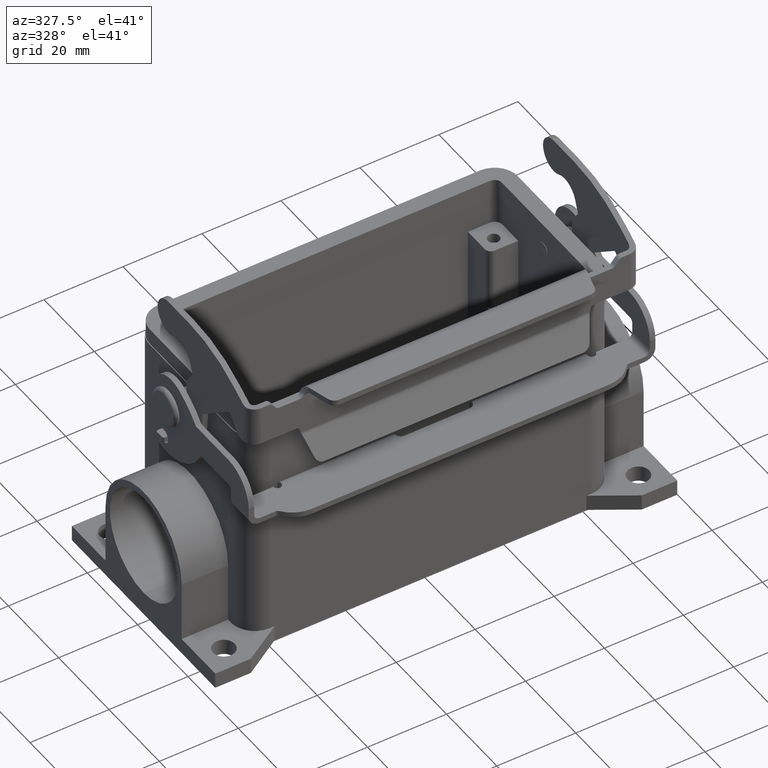
[diagram: clean part render]
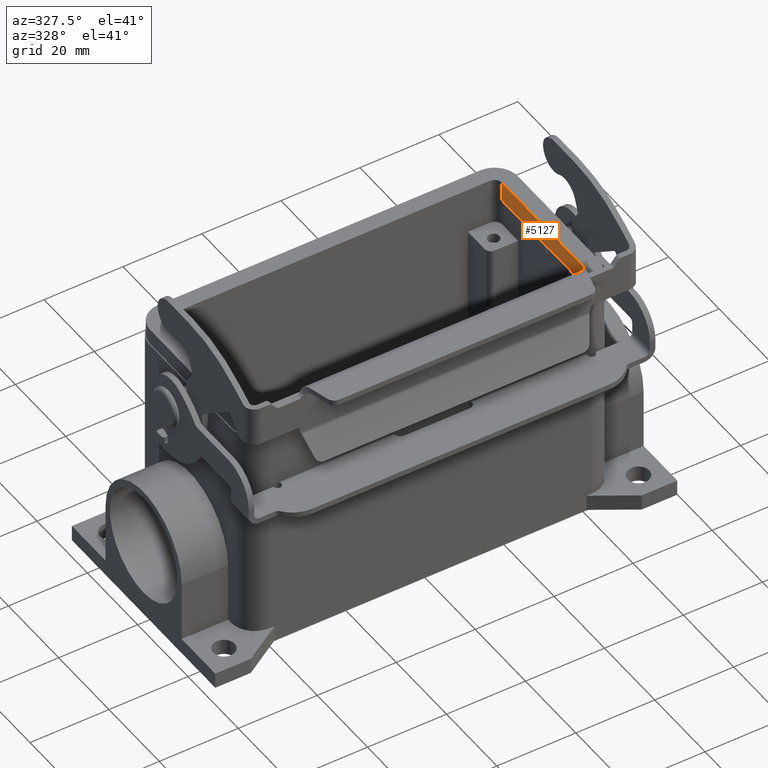
[diagram: same view with one face highlighted and labeled with its STEP entity id]
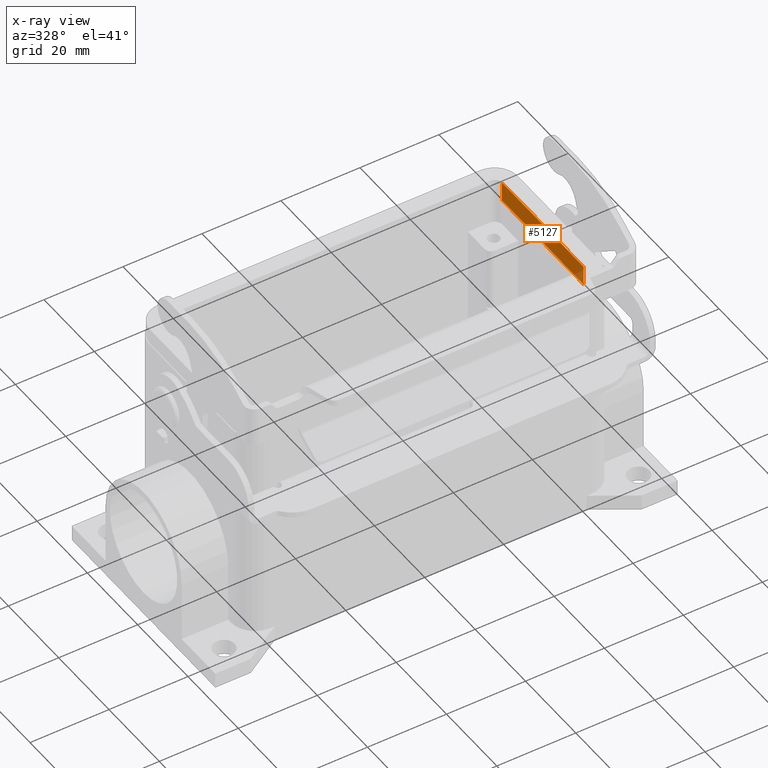
[diagram: x-ray of the same camera — body ghosted, the highlighted face saturated]
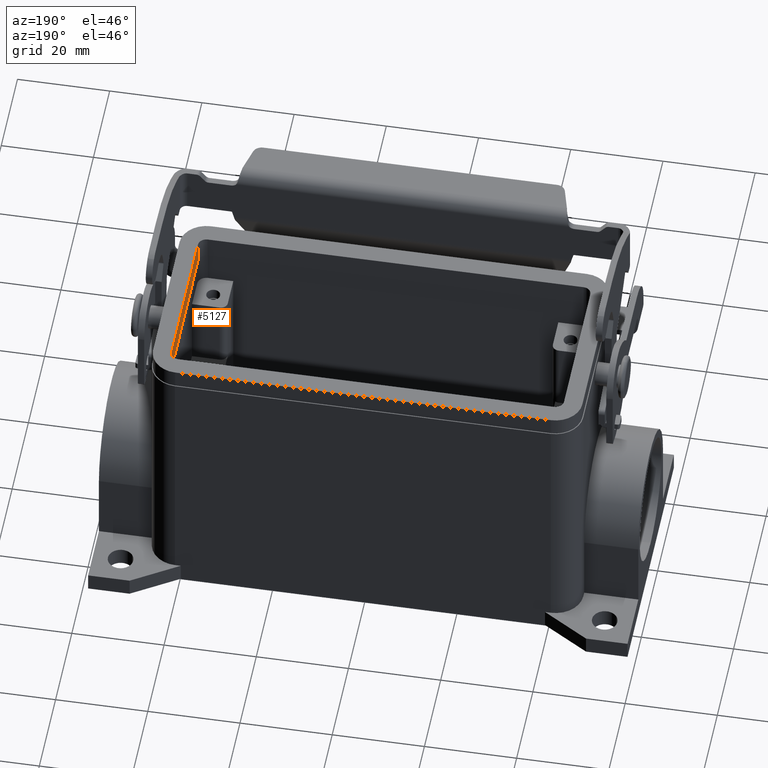
[diagram: same view with one face highlighted and labeled with its STEP entity id]
A machine part, auxiliary view. The second image highlights one B-rep face of the part: STEP entity #5127.
The next image is the same camera in x-ray: the body ghosted, the highlighted face saturated — about 5% of this face is hidden behind the body in this view.
A second angle (auxiliary view) of the same face is appended — the face is thin or edge-on in the first view.
In plain terms, the highlighted planar face has unit normal (1, 0, 0).
Its self-contained STEP definition (entity closure, byte-faithful):
#4955=CARTESIAN_POINT('',(42.550000000000011,-16.250000000000000,2.000000000000003));
#4956=VERTEX_POINT('',#4955);
#4964=CARTESIAN_POINT('',(42.550000000000011,16.250000000000000,2.000000000000003));
#4965=VERTEX_POINT('',#4964);
#4966=CARTESIAN_POINT('',(42.550000000000011,-16.250000000000000,2.000000000000003));
#4967=DIRECTION('',(0.0,1.0,0.0));
#4968=VECTOR('',#4967,32.500000000000000);
#4969=LINE('',#4966,#4968);
#4970=EDGE_CURVE('',#4956,#4965,#4969,.T.);
#5086=CARTESIAN_POINT('',(42.550000000000011,-16.250000000000000,7.000000000000002));
#5087=VERTEX_POINT('',#5086);
#5095=CARTESIAN_POINT('',(42.550000000000011,-16.250000000000000,7.000000000000002));
#5096=DIRECTION('',(0.0,0.0,-1.0));
#5097=VECTOR('',#5096,4.999999999999999);
#5098=LINE('',#5095,#5097);
#5099=EDGE_CURVE('',#5087,#4956,#5098,.T.);
#5104=CARTESIAN_POINT('',(42.550000000000011,-16.250000000000000,7.000000000000002));
#5105=DIRECTION('',(1.0,0.0,0.0));
#5106=DIRECTION('',(0.0,0.0,-1.0));
#5107=AXIS2_PLACEMENT_3D('',#5104,#5105,#5106);
#5108=PLANE('',#5107);
#5109=ORIENTED_EDGE('',*,*,#4970,.F.);
#5110=ORIENTED_EDGE('',*,*,#5099,.F.);
#5111=CARTESIAN_POINT('',(42.550000000000011,16.250000000000000,7.000000000000002));
#5112=VERTEX_POINT('',#5111);
#5113=CARTESIAN_POINT('',(42.550000000000011,16.250000000000000,7.000000000000002));
#5114=DIRECTION('',(0.0,-1.0,0.0));
#5115=VECTOR('',#5114,32.500000000000000);
#5116=LINE('',#5113,#5115);
#5117=EDGE_CURVE('',#5112,#5087,#5116,.T.);
#5118=ORIENTED_EDGE('',*,*,#5117,.F.);
#5119=CARTESIAN_POINT('',(42.550000000000011,16.250000000000000,7.000000000000002));
#5120=DIRECTION('',(0.0,0.0,-1.0));
#5121=VECTOR('',#5120,4.999999999999999);
#5122=LINE('',#5119,#5121);
#5123=EDGE_CURVE('',#5112,#4965,#5122,.T.);
#5124=ORIENTED_EDGE('',*,*,#5123,.T.);
#5125=EDGE_LOOP('',(#5109,#5110,#5118,#5124));
#5126=FACE_OUTER_BOUND('',#5125,.T.);
#5127=ADVANCED_FACE('',(#5126),#5108,.F.);